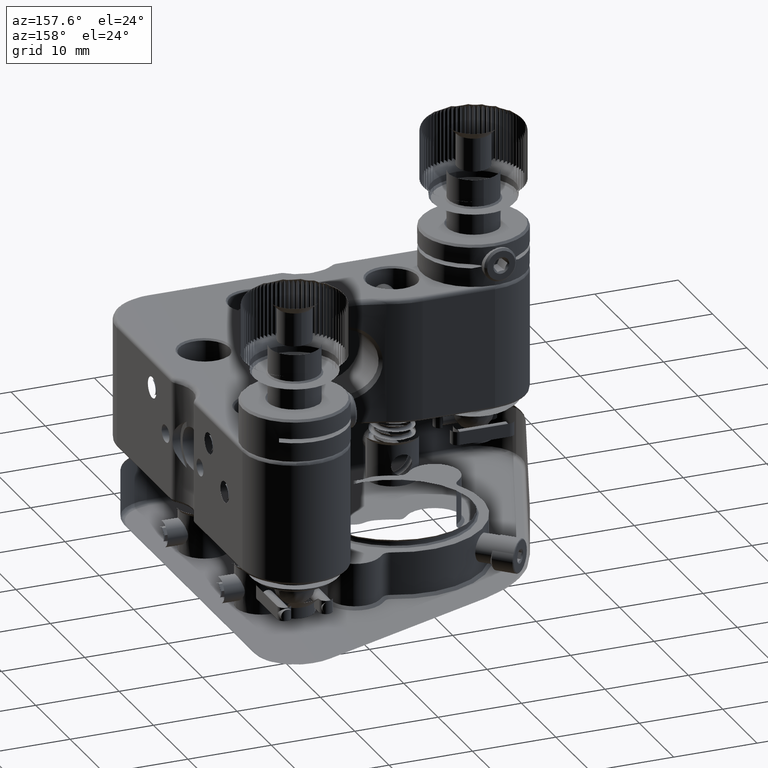
[diagram: clean part render]
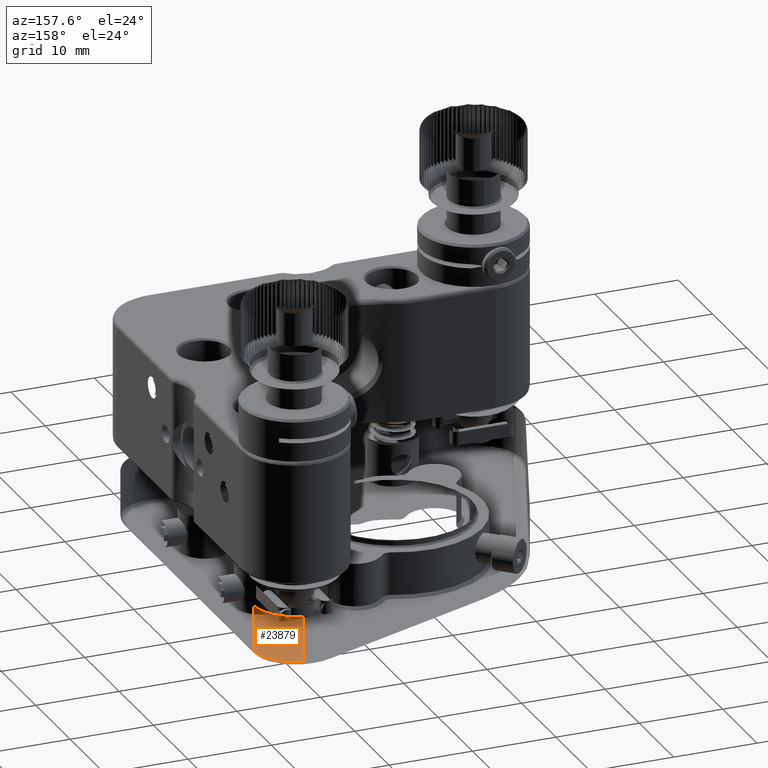
[diagram: same view with one face highlighted and labeled with its STEP entity id]
A machine part, auxiliary view. The second image highlights one B-rep face of the part: STEP entity #23879.
In plain terms, the highlighted cylindrical surface (partial cylindrical patch) has radius 5 mm, axis along (0, 0, 1).
Its self-contained STEP definition (entity closure, byte-faithful):
#3720 = DIRECTION ( 'NONE',  ( -0.000000000000000000, -0.000000000000000000, -1.000000000000000000 ) ) ;
#4499 = CARTESIAN_POINT ( 'NONE',  ( 23.50000000000002842, 18.97474487139157873, -16.99999999999999645 ) ) ;
#5053 = EDGE_CURVE ( 'NONE', #24288, #28609, #14270, .T. ) ;
#6336 = CARTESIAN_POINT ( 'NONE',  ( 18.50000000000002842, 18.97474487139157873, -17.49999999999999645 ) ) ;
#7632 = CARTESIAN_POINT ( 'NONE',  ( 18.50000000000002842, 18.97474487139157873, -16.99999999999999645 ) ) ;
#9275 = FACE_OUTER_BOUND ( 'NONE', #21708, .T. ) ;
#10083 = EDGE_CURVE ( 'NONE', #28609, #11435, #43391, .T. ) ;
#10399 = EDGE_CURVE ( 'NONE', #24288, #17083, #41291, .T. ) ;
#11435 = VERTEX_POINT ( 'NONE', #4499 ) ;
#12088 = EDGE_CURVE ( 'NONE', #17083, #11435, #12109, .T. ) ;
#12109 = LINE ( 'NONE', #25275, #29511 ) ;
#14270 = LINE ( 'NONE', #34341, #16281 ) ;
#15682 = ORIENTED_EDGE ( 'NONE', *, *, #12088, .F. ) ;
#16281 = VECTOR ( 'NONE', #3720, 1000.000000000000000 ) ;
#16425 = CYLINDRICAL_SURFACE ( 'NONE', #40080, 5.000000000000000888 ) ;
#17083 = VERTEX_POINT ( 'NONE', #31166 ) ;
#21280 = DIRECTION ( 'NONE',  ( -0.000000000000000000, -0.000000000000000000, -1.000000000000000000 ) ) ;
#21708 = EDGE_LOOP ( 'NONE', ( #15682, #26480, #34358, #30750 ) ) ;
#21986 = AXIS2_PLACEMENT_3D ( 'NONE', #7632, #21280, #40943 ) ;
#23469 = DIRECTION ( 'NONE',  ( -0.000000000000000000, -0.000000000000000000, -1.000000000000000000 ) ) ;
#23879 = ADVANCED_FACE ( 'NONE', ( #9275 ), #16425, .F. ) ;
#24288 = VERTEX_POINT ( 'NONE', #33028 ) ;
#25275 = CARTESIAN_POINT ( 'NONE',  ( 23.50000000000002842, 18.97474487139157873, -17.49999999999999645 ) ) ;
#26480 = ORIENTED_EDGE ( 'NONE', *, *, #10399, .F. ) ;
#28609 = VERTEX_POINT ( 'NONE', #39102 ) ;
#29511 = VECTOR ( 'NONE', #32618, 1000.000000000000000 ) ;
#30034 = DIRECTION ( 'NONE',  ( 0.000000000000000000, 0.000000000000000000, 1.000000000000000000 ) ) ;
#30390 = CARTESIAN_POINT ( 'NONE',  ( 18.50000000000002842, 18.97474487139157873, -11.50000000000000000 ) ) ;
#30592 = AXIS2_PLACEMENT_3D ( 'NONE', #30390, #23469, #36427 ) ;
#30750 = ORIENTED_EDGE ( 'NONE', *, *, #10083, .T. ) ;
#31166 = CARTESIAN_POINT ( 'NONE',  ( 23.50000000000002842, 18.97474487139157873, -11.50000000000000000 ) ) ;
#32618 = DIRECTION ( 'NONE',  ( -0.000000000000000000, -0.000000000000000000, -1.000000000000000000 ) ) ;
#33028 = CARTESIAN_POINT ( 'NONE',  ( 19.50000000000002487, 23.87372435695793982, -11.50000000000000000 ) ) ;
#34341 = CARTESIAN_POINT ( 'NONE',  ( 19.50000000000002487, 23.87372435695793982, -17.49999999999999645 ) ) ;
#34358 = ORIENTED_EDGE ( 'NONE', *, *, #5053, .T. ) ;
#36427 = DIRECTION ( 'NONE',  ( 1.000000000000000000, -6.938893903907227392E-16, 0.000000000000000000 ) ) ;
#37629 = DIRECTION ( 'NONE',  ( 1.000000000000000000, 0.000000000000000000, 0.000000000000000000 ) ) ;
#39102 = CARTESIAN_POINT ( 'NONE',  ( 19.50000000000002842, 23.87372435695793627, -16.99999999999999645 ) ) ;
#40080 = AXIS2_PLACEMENT_3D ( 'NONE', #6336, #30034, #37629 ) ;
#40943 = DIRECTION ( 'NONE',  ( 1.000000000000000000, -6.938893903907227392E-16, 0.000000000000000000 ) ) ;
#41291 = CIRCLE ( 'NONE', #30592, 5.000000000000000888 ) ;
#43391 = CIRCLE ( 'NONE', #21986, 5.000000000000000888 ) ;